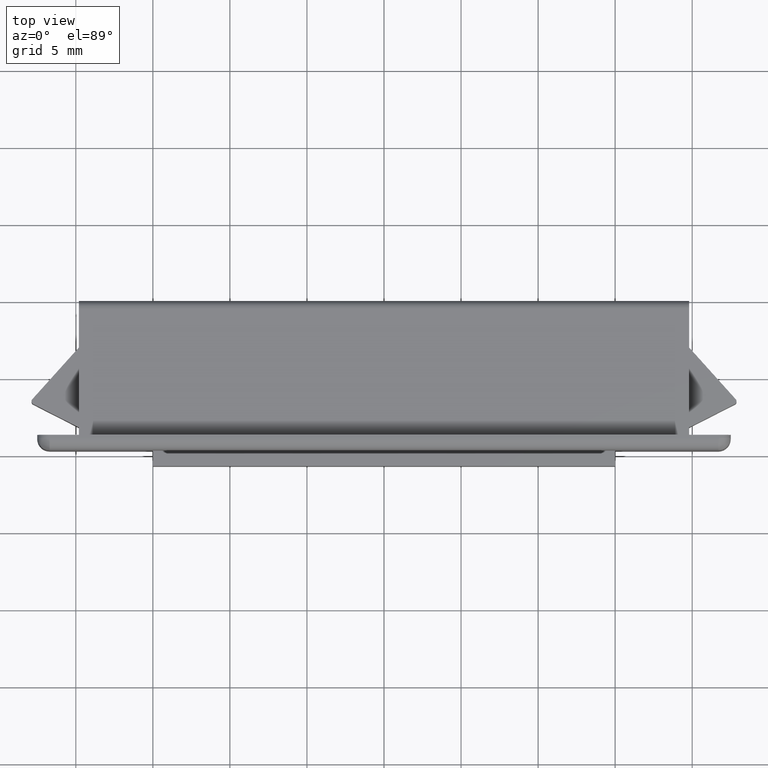
[diagram: clean part render]
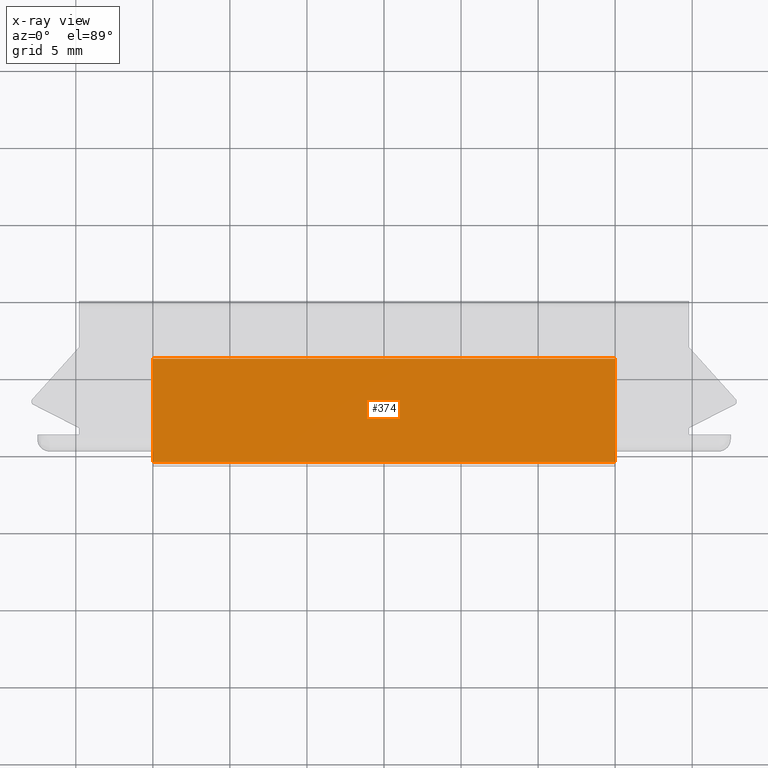
[diagram: x-ray — body ghosted, one internal face saturated and labeled with its STEP entity id]
A machine part, top view, then the same camera in x-ray: the body is ghosted and one INTERNAL B-rep face — a face not visible from any outside direction — is saturated and labeled: STEP entity #374.
In plain terms, the highlighted face is a freeform B-spline surface patch.
Its self-contained STEP definition (entity closure, byte-faithful):
#297=CARTESIAN_POINT('',(16.498499941854181,-10.734664987009671,-0.699999999999989));
#298=CARTESIAN_POINT('',(-16.498500746516889,-10.734664987009671,-0.699999999999989));
#299=CARTESIAN_POINT('',(16.498499941854181,-3.365334833371022,-0.699999999999989));
#300=CARTESIAN_POINT('',(-16.498500746516889,-3.365334833371022,-0.699999999999989));
#301=B_SPLINE_SURFACE_WITH_KNOTS('',1,1,((#297,#299),(#298,#300)),.UNSPECIFIED.,.F.,.F.,.U.,(2,2),(2,2),(0.0,32.997000688371060),(0.0,7.369330153638649),.UNSPECIFIED.);
#302=CARTESIAN_POINT('',(15.0,-10.400000000000000,-0.699999999999989));
#303=VERTEX_POINT('',#302);
#304=CARTESIAN_POINT('',(15.0,-9.700000000088689,-0.699999999999989));
#305=VERTEX_POINT('',#304);
#306=CARTESIAN_POINT('',(15.0,-10.400000000000000,-0.699999999999989));
#307=CARTESIAN_POINT('',(15.0,-9.700000000088689,-0.699999999999989));
#308=QUASI_UNIFORM_CURVE('',1,(#306,#307),.UNSPECIFIED.,.F.,.U.);
#309=EDGE_CURVE('',#303,#305,#308,.T.);
#310=ORIENTED_EDGE('',*,*,#309,.F.);
#311=CARTESIAN_POINT('',(-15.0,-10.400000000000000,-0.699999999999989));
#312=VERTEX_POINT('',#311);
#313=CARTESIAN_POINT('',(-15.0,-10.400000000000000,-0.699999999999989));
#314=CARTESIAN_POINT('',(15.0,-10.400000000000000,-0.699999999999989));
#315=QUASI_UNIFORM_CURVE('',1,(#313,#314),.UNSPECIFIED.,.F.,.U.);
#316=EDGE_CURVE('',#312,#303,#315,.T.);
#317=ORIENTED_EDGE('',*,*,#316,.F.);
#318=CARTESIAN_POINT('',(-15.0,-9.700000000088689,-0.699999999999989));
#319=VERTEX_POINT('',#318);
#320=CARTESIAN_POINT('',(-15.0,-10.400000000000000,-0.699999999999989));
#321=CARTESIAN_POINT('',(-15.0,-9.700000000088689,-0.699999999999989));
#322=QUASI_UNIFORM_CURVE('',1,(#320,#321),.UNSPECIFIED.,.F.,.U.);
#323=EDGE_CURVE('',#312,#319,#322,.T.);
#324=ORIENTED_EDGE('',*,*,#323,.T.);
#325=CARTESIAN_POINT('',(-14.999999999966199,-8.699999999999999,-0.699999999999989));
#326=VERTEX_POINT('',#325);
#327=CARTESIAN_POINT('',(-15.0,-9.700000000088689,-0.699999999999989));
#328=CARTESIAN_POINT('',(-14.999999999966199,-8.699999999999999,-0.699999999999989));
#329=QUASI_UNIFORM_CURVE('',1,(#327,#328),.UNSPECIFIED.,.F.,.U.);
#330=EDGE_CURVE('',#319,#326,#329,.T.);
#331=ORIENTED_EDGE('',*,*,#330,.T.);
#332=CARTESIAN_POINT('',(-15.0,-8.190474550507219,-0.699999999999989));
#333=VERTEX_POINT('',#332);
#334=CARTESIAN_POINT('',(-14.999999999966199,-8.699999999999999,-0.699999999999989));
#335=CARTESIAN_POINT('',(-15.0,-8.190474550507219,-0.699999999999989));
#336=QUASI_UNIFORM_CURVE('',1,(#334,#335),.UNSPECIFIED.,.F.,.U.);
#337=EDGE_CURVE('',#326,#333,#336,.T.);
#338=ORIENTED_EDGE('',*,*,#337,.T.);
#339=CARTESIAN_POINT('',(-15.0,-3.700000000088696,-0.699999999999989));
#340=VERTEX_POINT('',#339);
#341=CARTESIAN_POINT('',(-15.0,-8.190474550507219,-0.699999999999989));
#342=CARTESIAN_POINT('',(-15.0,-3.700000000088696,-0.699999999999989));
#343=QUASI_UNIFORM_CURVE('',1,(#341,#342),.UNSPECIFIED.,.F.,.U.);
#344=EDGE_CURVE('',#333,#340,#343,.T.);
#345=ORIENTED_EDGE('',*,*,#344,.T.);
#346=CARTESIAN_POINT('',(15.0,-3.700000000088696,-0.699999999999989));
#347=VERTEX_POINT('',#346);
#348=CARTESIAN_POINT('',(-15.0,-3.700000000088696,-0.699999999999989));
#349=CARTESIAN_POINT('',(15.0,-3.700000000088696,-0.699999999999989));
#350=QUASI_UNIFORM_CURVE('',1,(#348,#349),.UNSPECIFIED.,.F.,.U.);
#351=EDGE_CURVE('',#340,#347,#350,.T.);
#352=ORIENTED_EDGE('',*,*,#351,.T.);
#353=CARTESIAN_POINT('',(14.999999999966199,-8.190474550507219,-0.699999999999989));
#354=VERTEX_POINT('',#353);
#355=CARTESIAN_POINT('',(14.999999999966199,-8.190474550507219,-0.699999999999989));
#356=CARTESIAN_POINT('',(15.0,-3.700000000088696,-0.699999999999989));
#357=QUASI_UNIFORM_CURVE('',1,(#355,#356),.UNSPECIFIED.,.F.,.U.);
#358=EDGE_CURVE('',#354,#347,#357,.T.);
#359=ORIENTED_EDGE('',*,*,#358,.F.);
#360=CARTESIAN_POINT('',(15.0,-8.699999999999999,-0.699999999999989));
#361=VERTEX_POINT('',#360);
#362=CARTESIAN_POINT('',(14.999999999966199,-8.190474550507219,-0.699999999999989));
#363=CARTESIAN_POINT('',(15.0,-8.699999999999999,-0.699999999999989));
#364=QUASI_UNIFORM_CURVE('',1,(#362,#363),.UNSPECIFIED.,.F.,.U.);
#365=EDGE_CURVE('',#354,#361,#364,.T.);
#366=ORIENTED_EDGE('',*,*,#365,.T.);
#367=CARTESIAN_POINT('',(15.0,-9.700000000088689,-0.699999999999989));
#368=CARTESIAN_POINT('',(15.0,-8.699999999999999,-0.699999999999989));
#369=QUASI_UNIFORM_CURVE('',1,(#367,#368),.UNSPECIFIED.,.F.,.U.);
#370=EDGE_CURVE('',#305,#361,#369,.T.);
#371=ORIENTED_EDGE('',*,*,#370,.F.);
#372=EDGE_LOOP('',(#310,#317,#324,#331,#338,#345,#352,#359,#366,#371));
#373=FACE_OUTER_BOUND('',#372,.T.);
#374=ADVANCED_FACE('',(#373),#301,.T.);